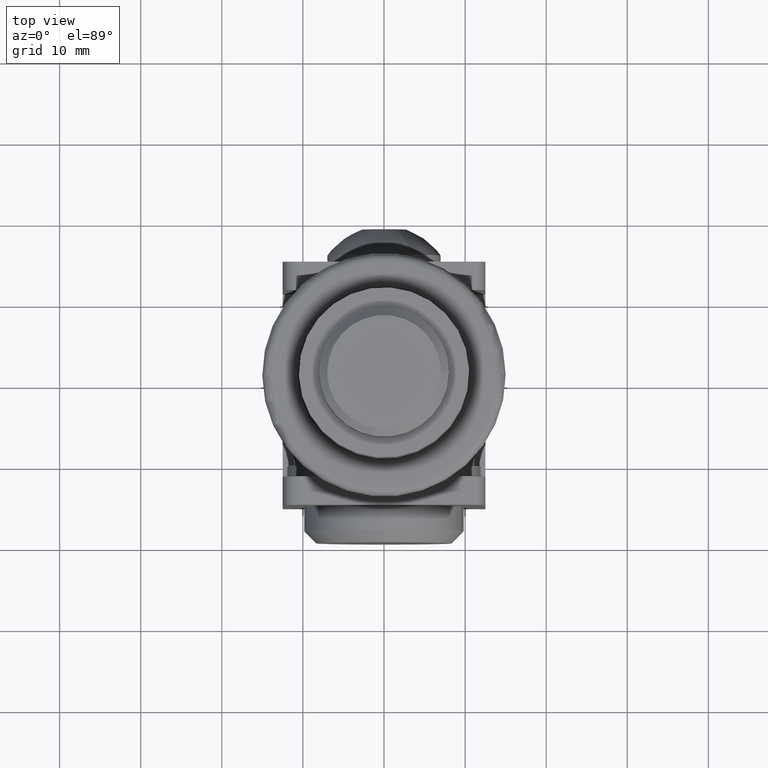
[diagram: clean part render]
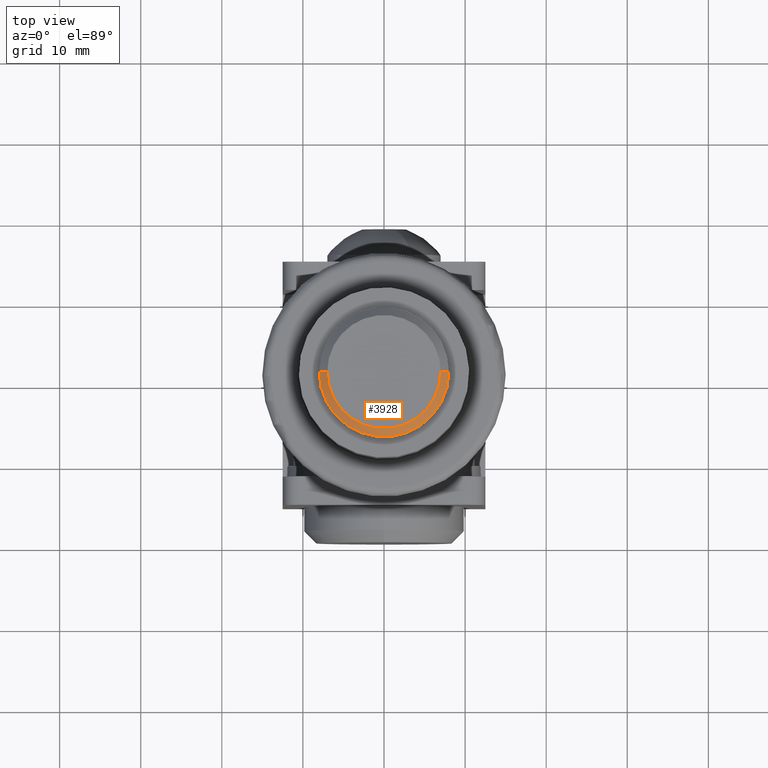
[diagram: same view with one face highlighted and labeled with its STEP entity id]
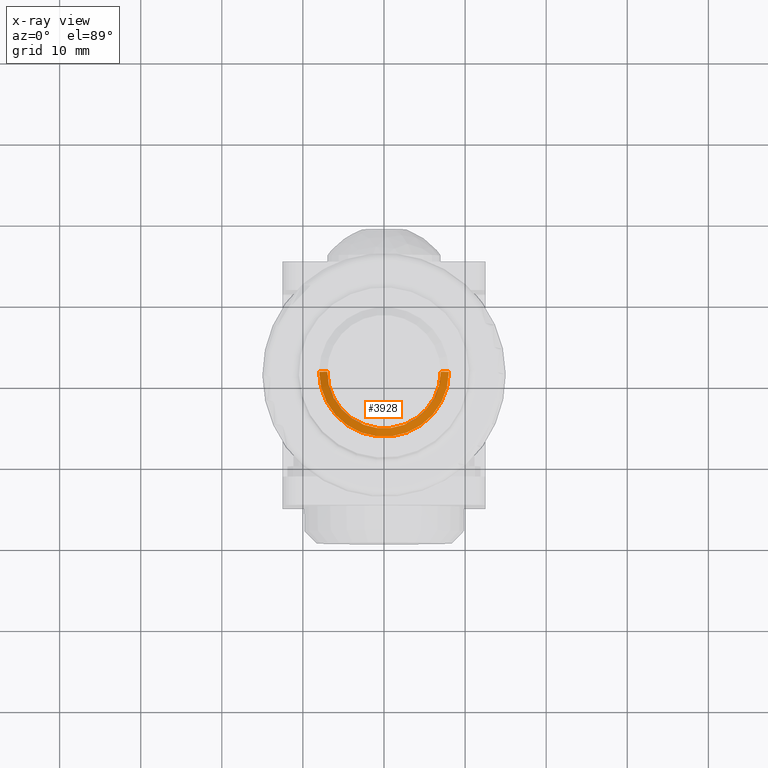
[diagram: x-ray of the same camera — body ghosted, the highlighted face saturated]
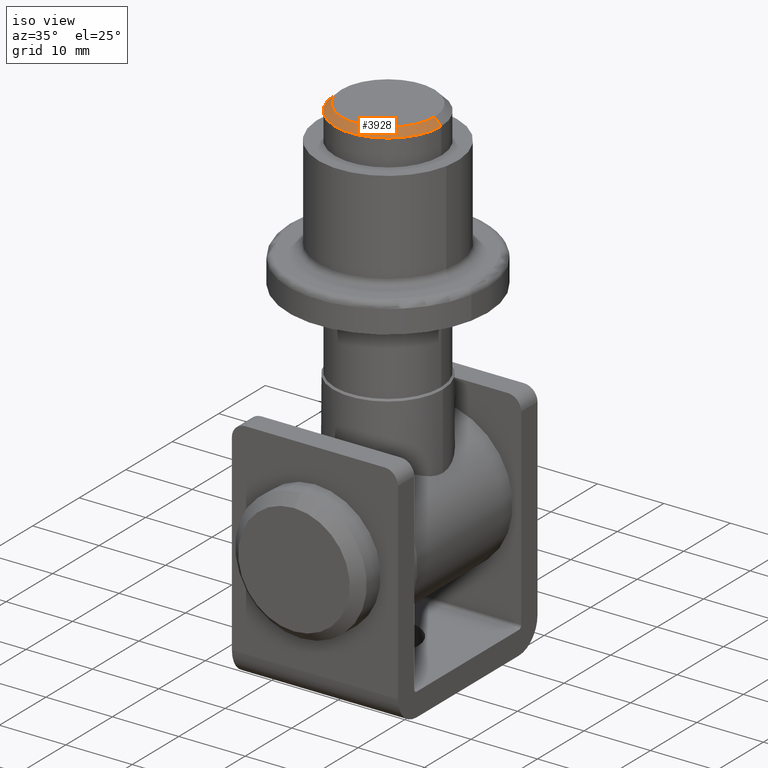
[diagram: same view with one face highlighted and labeled with its STEP entity id]
A machine part, top view. The second image highlights one B-rep face of the part: STEP entity #3928.
The next image is the same camera in x-ray: the body ghosted, the highlighted face saturated — about 0% of this face is hidden behind the body in this view.
A second angle (iso view) of the same face is appended — the face is thin or edge-on in the first view.
In plain terms, the highlighted conical surface has half-angle 45 deg.
Its self-contained STEP definition (entity closure, byte-faithful):
#566 = CIRCLE ( 'NONE', #14099, 6.999999999999978684 ) ;
#1244 = CARTESIAN_POINT ( 'NONE',  ( 8.000000000000000000, 0.000000000000000000, -54.75000000000000000 ) ) ;
#1650 = EDGE_CURVE ( 'NONE', #3512, #6832, #13150, .T. ) ;
#2799 = VECTOR ( 'NONE', #8497, 1000.000000000000000 ) ;
#3473 = DIRECTION ( 'NONE',  ( 1.000000000000000000, 0.000000000000000000, 0.000000000000000000 ) ) ;
#3512 = VERTEX_POINT ( 'NONE', #6539 ) ;
#3568 = DIRECTION ( 'NONE',  ( -0.000000000000000000, -0.000000000000000000, 1.000000000000000000 ) ) ;
#3730 = EDGE_CURVE ( 'NONE', #3843, #3512, #16499, .T. ) ;
#3843 = VERTEX_POINT ( 'NONE', #12645 ) ;
#3928 = ADVANCED_FACE ( 'NONE', ( #5748 ), #6564, .T. ) ;
#4955 = CARTESIAN_POINT ( 'NONE',  ( 0.000000000000000000, 0.000000000000000000, -55.75000000000000000 ) ) ;
#5748 = FACE_OUTER_BOUND ( 'NONE', #6395, .T. ) ;
#6395 = EDGE_LOOP ( 'NONE', ( #9803, #11297, #9582, #15418 ) ) ;
#6539 = CARTESIAN_POINT ( 'NONE',  ( -8.000000000000000000, 0.000000000000000000, -54.75000000000000000 ) ) ;
#6564 = CONICAL_SURFACE ( 'NONE', #12352, 8.000000000000000000, 0.7853981633974587151 ) ;
#6832 = VERTEX_POINT ( 'NONE', #16731 ) ;
#8254 = LINE ( 'NONE', #1244, #12233 ) ;
#8497 = DIRECTION ( 'NONE',  ( -0.7071067811865549002, 8.659560562355022838E-17, 0.7071067811865401342 ) ) ;
#8514 = CARTESIAN_POINT ( 'NONE',  ( 0.000000000000000000, 0.000000000000000000, -54.75000000000000000 ) ) ;
#9582 = ORIENTED_EDGE ( 'NONE', *, *, #14180, .T. ) ;
#9721 = CARTESIAN_POINT ( 'NONE',  ( -8.000000000000000000, 9.797174393178825657E-16, -54.75000000000000000 ) ) ;
#9803 = ORIENTED_EDGE ( 'NONE', *, *, #3730, .F. ) ;
#10420 = AXIS2_PLACEMENT_3D ( 'NONE', #8514, #16435, #11100 ) ;
#10735 = DIRECTION ( 'NONE',  ( 0.7071067811865549002, 0.000000000000000000, 0.7071067811865401342 ) ) ;
#11100 = DIRECTION ( 'NONE',  ( 1.000000000000000000, 0.000000000000000000, 0.000000000000000000 ) ) ;
#11297 = ORIENTED_EDGE ( 'NONE', *, *, #16781, .F. ) ;
#11746 = CARTESIAN_POINT ( 'NONE',  ( 0.000000000000000000, 0.000000000000000000, -54.75000000000000000 ) ) ;
#12233 = VECTOR ( 'NONE', #10735, 1000.000000000000000 ) ;
#12352 = AXIS2_PLACEMENT_3D ( 'NONE', #11746, #3568, #14451 ) ;
#12645 = CARTESIAN_POINT ( 'NONE',  ( -6.999999999999978684, 9.184850993605136112E-16, -55.75000000000000000 ) ) ;
#13008 = DIRECTION ( 'NONE',  ( -0.000000000000000000, -0.000000000000000000, -1.000000000000000000 ) ) ;
#13150 = CIRCLE ( 'NONE', #10420, 8.000000000000000000 ) ;
#14099 = AXIS2_PLACEMENT_3D ( 'NONE', #4955, #13008, #3473 ) ;
#14180 = EDGE_CURVE ( 'NONE', #17075, #6832, #8254, .T. ) ;
#14451 = DIRECTION ( 'NONE',  ( 1.000000000000000000, 0.000000000000000000, 0.000000000000000000 ) ) ;
#15418 = ORIENTED_EDGE ( 'NONE', *, *, #1650, .F. ) ;
#15641 = CARTESIAN_POINT ( 'NONE',  ( 6.999999999999978684, 0.000000000000000000, -55.75000000000000000 ) ) ;
#16435 = DIRECTION ( 'NONE',  ( -0.000000000000000000, -0.000000000000000000, 1.000000000000000000 ) ) ;
#16499 = LINE ( 'NONE', #9721, #2799 ) ;
#16731 = CARTESIAN_POINT ( 'NONE',  ( 8.000000000000000000, 9.797174393178825657E-16, -54.75000000000000000 ) ) ;
#16781 = EDGE_CURVE ( 'NONE', #17075, #3843, #566, .T. ) ;
#17075 = VERTEX_POINT ( 'NONE', #15641 ) ;